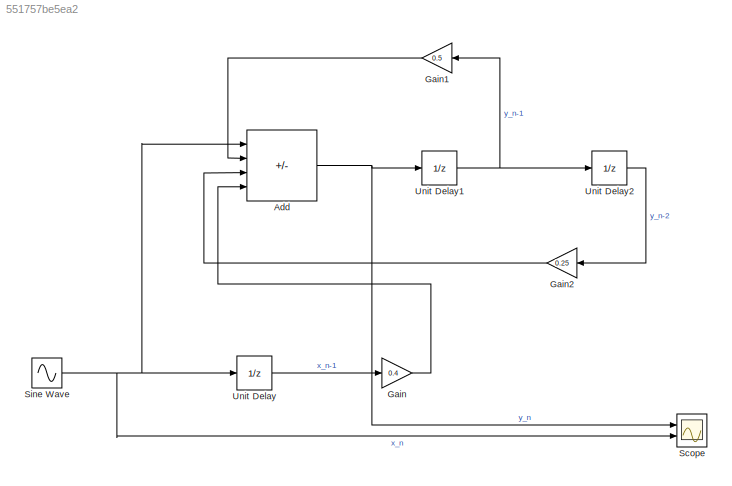
MODEL slx_551757be5ea2
KIND model
CONFIG AbsTol = auto
CONFIG EnableMultiTasking = off
CONFIG FixedStep = auto
CONFIG MaxStep = auto
CONFIG MinStep = auto
CONFIG RelTol = 1e-3
CONFIG SampleTimeConstraint = Unconstrained
CONFIG SolverName = VariableStepAuto
CONFIG StartTime = 0.0
CONFIG StopTime = 10.0
BLOCK [Sum] Add
  IconShape = rectangular
  Inputs = ++-+
  Ports = [4, 1]
BLOCK [Gain] Gain
  Gain = 0.4
BLOCK [Gain] Gain1
  Gain = 0.5
  NameLocation = top
BLOCK [Gain] Gain2
  Gain = 0.25
  NameLocation = top
BLOCK [Scope] Scope
  Floating = off
  NumInputPorts = 2
  Ports = [2]
  ScopeSpecificationString = Simulink.scopes.TimeScopeBlockCfg('CurrentConfiguration', extmgr.ConfigurationSet(extmgr.Configuration('Core','General UI',true),extmgr.Configuration('Core','Source UI',true),extmgr.Configuration('Sources','WiredSimulink',true),extmgr.Configuration('Visuals','Time Domain',true,'SerializedDisplays',{struct('MinYLimReal','-2.35343','MaxYLimReal','2.35234','YLabelReal','','MinYLimMag','0.00000','MaxY...<+1327ch>
BLOCK [Sin] Sine Wave
  Ports = [0, 1]
  SampleTime = 0
BLOCK [UnitDelay] Unit Delay
  HasFrameUpgradeWarning = on
  SampleTime = -1
BLOCK [UnitDelay] Unit Delay1
  HasFrameUpgradeWarning = on
  SampleTime = -1
BLOCK [UnitDelay] Unit Delay2
  HasFrameUpgradeWarning = on
  SampleTime = -1
NET Add:1 -> Scope:1, Unit Delay1:1
LINE Gain1:1 -> Add:2
LINE Gain2:1 -> Add:3
LINE Gain:1 -> Add:4
NET Sine Wave:1 -> Add:1, Scope:2, Unit Delay:1
NET Unit Delay1:1 -> Gain1:1, Unit Delay2:1
LINE Unit Delay2:1 -> Gain2:1
LINE Unit Delay:1 -> Gain:1
note: NET lines group one-source signal fan-out (src -> all destinations, sorted); 1:1 wires keep LINE
